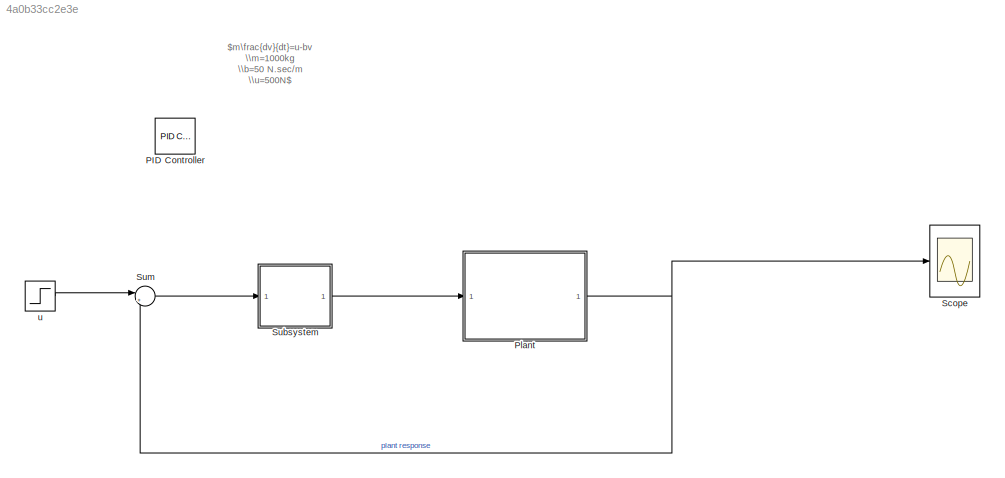
MODEL slx_4a0b33cc2e3e
KIND model
CONFIG AbsTol = auto
CONFIG EnableMultiTasking = off
CONFIG FixedStep = auto
CONFIG MaxStep = auto
CONFIG MinStep = auto
CONFIG RelTol = 1e-3
CONFIG SampleTimeConstraint = Unconstrained
CONFIG SolverName = VariableStepAuto
CONFIG StartTime = 0.0
CONFIG StopTime = 10.0
BLOCK [Reference] PID Controller  REF=pid_lib/PID Controller
  Commented = on
  Ports = [1, 1]
  SourceBlock = pid_lib/PID Controller
  SourceProductBaseCode = SL
  SourceType = PID 1dof
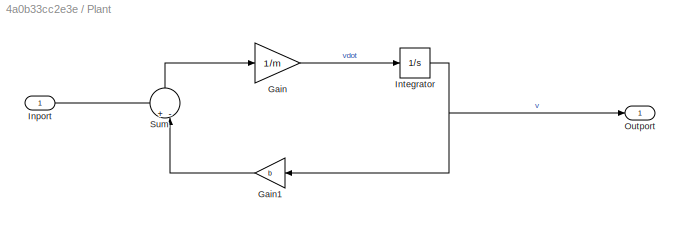
BLOCK [SubSystem] Plant
  Ports = [1, 1]
  RequestExecContextInheritance = off
BLOCK [Gain] Plant/Gain
  Gain = 1/m
BLOCK [Gain] Plant/Gain1
  Gain = b
  NameLocation = top
BLOCK [Inport] Plant/Inport
BLOCK [Integrator] Plant/Integrator
  Ports = [1, 1]
BLOCK [Outport] Plant/Outport
BLOCK [Sum] Plant/Sum
  Inputs = +-
  NameLocation = right
  Ports = [2, 1]
BLOCK [Scope] Scope
  Floating = off
  NumInputPorts = 1
  Ports = [1]
  ScopeSpecificationString = Simulink.scopes.TimeScopeBlockCfg('CurrentConfiguration', extmgr.ConfigurationSet(extmgr.Configuration('Core','General UI',true),extmgr.Configuration('Core','Source UI',true),extmgr.Configuration('Sources','WiredSimulink',true),extmgr.Configuration('Visuals','Time Domain',true,'SerializedDisplays',{struct('MinYLimReal','-52.85481','MaxYLimReal','475.69333','YLabelReal','','MinYLimMag','0.00000','M...<+1402ch>
BLOCK [ModelReference] Subsystem
  ModelNameDialog = Subsystem
  ModelReferenceVersion = 1.9
  Ports = [1, 1]
BLOCK [Sum] Sum
  Inputs = |+-
  Ports = [2, 1]
BLOCK [Step] u
  After = 500
  SampleTime = 0
  Time = 0
ANNOTATION (root): $m\frac{dv}{dt}=u-bv \\m=1000kg \\b=50 N.sec/m \\u=500N$
LINE Plant/Gain1:1 -> Plant/Sum:2
LINE Plant/Gain:1 -> Plant/Integrator:1
LINE Plant/Inport:1 -> Plant/Sum:1
NET Plant/Integrator:1 -> Plant/Gain1:1, Plant/Outport:1
LINE Plant/Sum:1 -> Plant/Gain:1
NET Plant:1 -> Scope:1, Sum:2
LINE Subsystem:1 -> Plant:1
LINE Sum:1 -> Subsystem:1
LINE u:1 -> Sum:1
note: NET lines group one-source signal fan-out (src -> all destinations, sorted); 1:1 wires keep LINE
